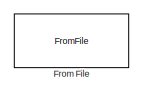
[diagram: root canvas - part 1/6, top left region]
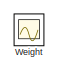
[diagram: root canvas - part 2/6, middle right region]
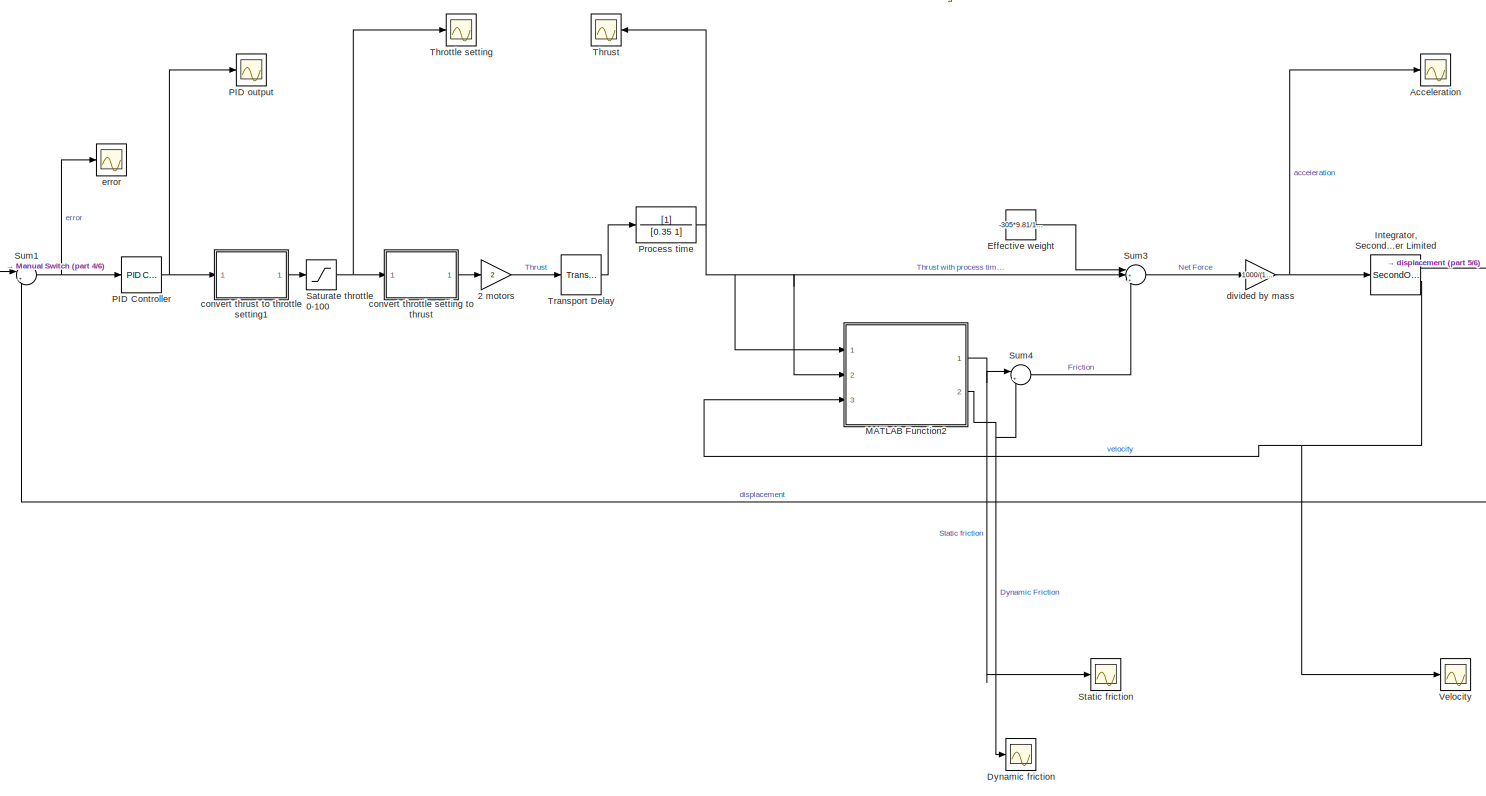
[diagram: root canvas - part 3/6, central region]
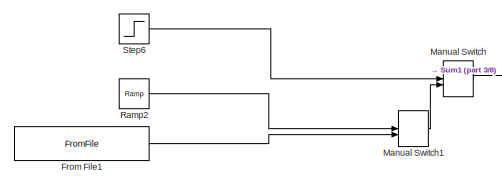
[diagram: root canvas - part 4/6, middle left region]
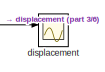
[diagram: root canvas - part 5/6, middle right region]
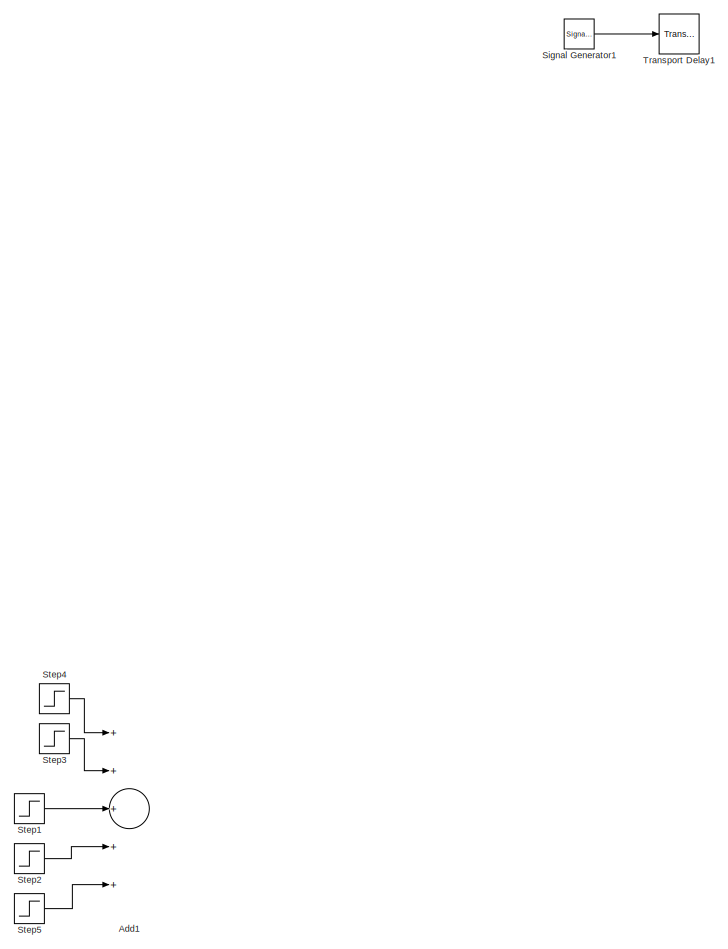
[diagram: root canvas - part 6/6, bottom left region]
MODEL slx_72b309ba7e25
KIND model
CONFIG AbsTol = auto
CONFIG EnableMultiTasking = off
CONFIG FixedStep = auto
CONFIG MaxStep = auto
CONFIG MinStep = auto
CONFIG RelTol = 1e-6
CONFIG SampleTimeConstraint = Unconstrained
CONFIG Solver = VariableStepAuto
CONFIG SolverName = VariableStepAuto
CONFIG StartTime = 0.0
CONFIG StopTime = 100
BLOCK [Gain] 2 motors
  Gain = 2
  OutDataTypeStr = Inherit: Inherit via internal rule
  ParamDataTypeStr = Inherit: Inherit via internal rule
  SaturateOnIntegerOverflow = off
BLOCK [Scope] Acceleration
  Floating = off
  NumInputPorts = 1
  Ports = [1]
  ScopeSpecificationString = Simulink.scopes.TimeScopeBlockCfg('CurrentConfiguration', extmgr.ConfigurationSet(extmgr.Configuration('Core','General UI',true),extmgr.Configuration('Core','Source UI',true),extmgr.Configuration('Sources','WiredSimulink',true,'DataLoggingVariableName','ScopeData6'),extmgr.Configuration('Visuals','Time Domain',true,'SerializedDisplays',{struct('MinYLimReal','-2.75869','MaxYLimReal','0.64408','YLab...<+1452ch>
BLOCK [Sum] Add1
  InputSameDT = off
  Inputs = +++++
  OutDataTypeStr = Inherit: Inherit via internal rule
  Ports = [5, 1]
  SaturateOnIntegerOverflow = off
BLOCK [Scope] Dynamic friction
  Floating = off
  NumInputPorts = 1
  Ports = [1]
  ScopeSpecificationString = Simulink.scopes.TimeScopeBlockCfg('CurrentConfiguration', extmgr.ConfigurationSet(extmgr.Configuration('Core','General UI',true),extmgr.Configuration('Core','Source UI',true),extmgr.Configuration('Sources','WiredSimulink',true,'DataLoggingVariableName','ScopeData5'),extmgr.Configuration('Visuals','Time Domain',true,'SerializedDisplays',{struct('MinYLimReal','-0.18448','MaxYLimReal','0.0205','YLabe...<+1454ch>
BLOCK [Constant] Effective weight
  Value = -305*9.81/1000
BLOCK [FromFile] From File
  FileName = missionProfile.mat
  SampleTime = 0
BLOCK [FromFile] From File1
  FileName = missionProfile.mat
  SampleTime = 0
BLOCK [SecondOrderIntegrator] Integrator, Second-Order Limited
  ICX = 0
  LimitX = on
  LowerLimitX = 0
  Ports = [1, 2]
  ReinitDXDTwhenXreachesSaturation = on
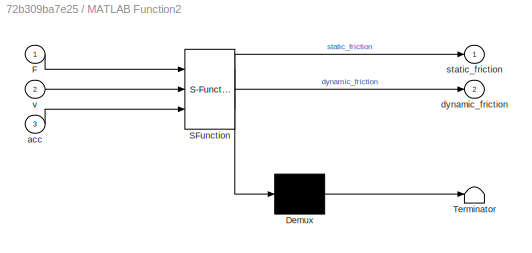
BLOCK [SubSystem] MATLAB Function2
  ErrorFcn = Stateflow.Translate.translate
  PermitHierarchicalResolution = ExplicitOnly
  Ports = [3, 2]
  RequestExecContextInheritance = off
  SFBlockType = MATLAB Function
  TreatAsAtomicUnit = on
BLOCK [Demux] MATLAB Function2/ Demux 
  Outputs = 1
  Ports = [1, 1]
BLOCK [S-Function] MATLAB Function2/ SFunction 
  EnableBusSupport = on
  FunctionName = sf_sfun
  PortCounts = [3 3]
  Ports = [3, 3]
  SFcnIsStateOwnerBlock = off
  SFunctionDeploymentMode = off
  Tag = Stateflow S-Function testmodel4 9
BLOCK [Terminator] MATLAB Function2/ Terminator 
BLOCK [Inport] MATLAB Function2/F
  IconDisplay = Port number
BLOCK [Inport] MATLAB Function2/acc
  IconDisplay = Port number
  Port = 3
BLOCK [Outport] MATLAB Function2/dynamic_friction
  IconDisplay = Port number
  Port = 2
BLOCK [Outport] MATLAB Function2/static_friction
  IconDisplay = Port number
BLOCK [Inport] MATLAB Function2/v
  IconDisplay = Port number
  Port = 2
BLOCK [ManualSwitch] Manual Switch
BLOCK [ManualSwitch] Manual Switch1
BLOCK [Reference] PID Controller  REF=simulink/Continuous/PID Controller
  Ports = [1, 1]
  SourceBlock = simulink/Continuous/PID Controller
  SourceProductBaseCode = SL
  SourceProductName = Simulink
  SourceType = PID 1dof
BLOCK [Scope] PID output
  Floating = off
  NumInputPorts = 1
  Ports = [1]
  ScopeSpecificationString = Simulink.scopes.TimeScopeBlockCfg('CurrentConfiguration', extmgr.ConfigurationSet(extmgr.Configuration('Core','General UI',true),extmgr.Configuration('Core','Source UI',true),extmgr.Configuration('Sources','WiredSimulink',true,'DataLoggingVariableName','ScopeData8'),extmgr.Configuration('Visuals','Time Domain',true,'SerializedDisplays',{struct('MinYLimReal','-943.76656','MaxYLimReal','808.63626','...<+1487ch>
BLOCK [TransferFcn] Process time  
  Denominator = [0.35 1]
BLOCK [Reference] Ramp2  REF=simulink/Sources/Ramp
  Ports = [0, 1]
  SourceBlock = simulink/Sources/Ramp
  SourceProductBaseCode = SL
  SourceProductName = Simulink
  SourceType = Ramp
BLOCK [Saturate] Saturate throttle 0-100
  InputPortMap = u0
  LowerLimit = 0
  Ports = [1, 1]
  UpperLimit = 100
BLOCK [SignalGenerator] Signal Generator1
  Ports = [0, 1]
  Units = rad/sec
BLOCK [Scope] Static friction
  Floating = off
  NumInputPorts = 1
  Ports = [1]
  ScopeSpecificationString = Simulink.scopes.TimeScopeBlockCfg('CurrentConfiguration', extmgr.ConfigurationSet(extmgr.Configuration('Core','General UI',true),extmgr.Configuration('Core','Source UI',true),extmgr.Configuration('Sources','WiredSimulink',true,'DataLoggingVariableName','ScopeData4'),extmgr.Configuration('Visuals','Time Domain',true,'SerializedDisplays',{struct('MinYLimReal','-1.00000','MaxYLimReal','1.00000','YLab...<+1454ch>
BLOCK [Step] Step1
  After = -2
  SampleTime = 0
  Time = 7
BLOCK [Step] Step2
  After = 6
  SampleTime = 0
  Time = 9
BLOCK [Step] Step3
  After = -5
  SampleTime = 0
  Time = 5
BLOCK [Step] Step4
  After = 5
  SampleTime = 0
  Time = 2
BLOCK [Step] Step5
  After = 10
  SampleTime = 0
  Time = 15
BLOCK [Step] Step6
  SampleTime = 0
BLOCK [Sum] Sum1
  IconShape = round
  InputSameDT = off
  Inputs = |+-
  OutDataTypeStr = Inherit: Inherit via internal rule
  Ports = [2, 1]
  SaturateOnIntegerOverflow = off
BLOCK [Sum] Sum3
  IconShape = round
  InputSameDT = off
  Inputs = |+++
  OutDataTypeStr = Inherit: Inherit via internal rule
  Ports = [3, 1]
  SaturateOnIntegerOverflow = off
BLOCK [Sum] Sum4
  IconShape = round
  InputSameDT = off
  Inputs = |++
  OutDataTypeStr = Inherit: Inherit via internal rule
  Ports = [2, 1]
  SaturateOnIntegerOverflow = off
BLOCK [Scope] Throttle setting
  Floating = off
  NumInputPorts = 1
  Ports = [1]
  ScopeSpecificationString = Simulink.scopes.TimeScopeBlockCfg('CurrentConfiguration', extmgr.ConfigurationSet(extmgr.Configuration('Core','General UI',true),extmgr.Configuration('Core','Source UI',true),extmgr.Configuration('Sources','WiredSimulink',true,'DataLoggingVariableName','ScopeData1'),extmgr.Configuration('Visuals','Time Domain',true,'SerializedDisplays',{struct('MinYLimReal','-12.5','MaxYLimReal','112.5','YLabelRea...<+1435ch>
BLOCK [Scope] Thrust
  Floating = off
  NumInputPorts = 1
  Ports = [1]
  ScopeSpecificationString = Simulink.scopes.TimeScopeBlockCfg('CurrentConfiguration', extmgr.ConfigurationSet(extmgr.Configuration('Core','General UI',true),extmgr.Configuration('Core','Source UI',true),extmgr.Configuration('Sources','WiredSimulink',true,'DataLoggingVariableName','ScopeData2'),extmgr.Configuration('Visuals','Time Domain',true,'SerializedDisplays',{struct('MinYLimReal','-0.43949','MaxYLimReal','3.95545','YLab...<+1465ch>
BLOCK [TransportDelay] Transport Delay
  DelayTime = 0.3
  Ports = [1, 1]
BLOCK [TransportDelay] Transport Delay1
  DelayTime = 30
  Ports = [1, 1]
BLOCK [Scope] Velocity
  Floating = off
  NumInputPorts = 1
  Ports = [1]
  ScopeSpecificationString = Simulink.scopes.TimeScopeBlockCfg('CurrentConfiguration', extmgr.ConfigurationSet(extmgr.Configuration('Core','General UI',true),extmgr.Configuration('Core','Source UI',true),extmgr.Configuration('Sources','WiredSimulink',true,'DataLoggingVariableName','ScopeData7'),extmgr.Configuration('Visuals','Time Domain',true,'SerializedDisplays',{struct('MinYLimReal','-0.11331','MaxYLimReal','0.49652','YLab...<+1475ch>
BLOCK [Scope] Weight
  Floating = off
  NumInputPorts = 1
  Ports = [1]
  ScopeSpecificationString = Simulink.scopes.TimeScopeBlockCfg('CurrentConfiguration', extmgr.ConfigurationSet(extmgr.Configuration('Core','General UI',true),extmgr.Configuration('Core','Source UI',true),extmgr.Configuration('Sources','WiredSimulink',true,'DataLoggingVariableName','ScopeData3'),extmgr.Configuration('Visuals','Time Domain',true,'SerializedDisplays',{struct('MinYLimReal','-1.00000','MaxYLimReal','1.00000','YLab...<+1475ch>
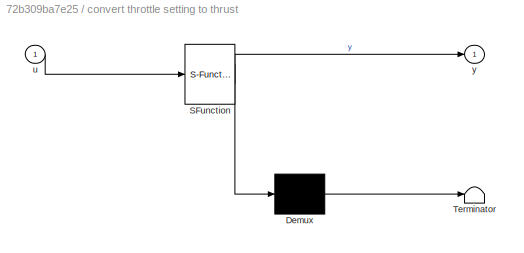
BLOCK [SubSystem] convert throttle setting to thrust
  ErrorFcn = Stateflow.Translate.translate
  PermitHierarchicalResolution = ExplicitOnly
  Ports = [1, 1]
  RequestExecContextInheritance = off
  SFBlockType = MATLAB Function
  TreatAsAtomicUnit = on
BLOCK [Demux] convert throttle setting to thrust/ Demux 
  Outputs = 1
  Ports = [1, 1]
BLOCK [S-Function] convert throttle setting to thrust/ SFunction 
  EnableBusSupport = on
  FunctionName = sf_sfun
  PortCounts = [1 2]
  Ports = [1, 2]
  SFcnIsStateOwnerBlock = off
  SFunctionDeploymentMode = off
  Tag = Stateflow S-Function testmodel4 1
BLOCK [Terminator] convert throttle setting to thrust/ Terminator 
BLOCK [Inport] convert throttle setting to thrust/u
  IconDisplay = Port number
BLOCK [Outport] convert throttle setting to thrust/y
  IconDisplay = Port number
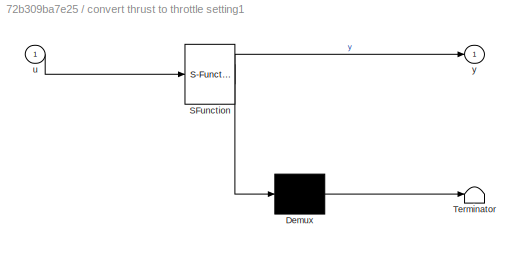
BLOCK [SubSystem] convert thrust to throttle setting1
  ErrorFcn = Stateflow.Translate.translate
  PermitHierarchicalResolution = ExplicitOnly
  Ports = [1, 1]
  RequestExecContextInheritance = off
  SFBlockType = MATLAB Function
  TreatAsAtomicUnit = on
BLOCK [Demux] convert thrust to throttle setting1/ Demux 
  Outputs = 1
  Ports = [1, 1]
BLOCK [S-Function] convert thrust to throttle setting1/ SFunction 
  EnableBusSupport = on
  FunctionName = sf_sfun
  PortCounts = [1 2]
  Ports = [1, 2]
  SFcnIsStateOwnerBlock = off
  SFunctionDeploymentMode = off
  Tag = Stateflow S-Function testmodel4 2
BLOCK [Terminator] convert thrust to throttle setting1/ Terminator 
BLOCK [Inport] convert thrust to throttle setting1/u
  IconDisplay = Port number
BLOCK [Outport] convert thrust to throttle setting1/y
  IconDisplay = Port number
BLOCK [Scope] displacement
  Floating = off
  NumInputPorts = 2
  Ports = [2]
  ScopeSpecificationString = Simulink.scopes.TimeScopeBlockCfg('CurrentConfiguration', extmgr.ConfigurationSet(extmgr.Configuration('Core','General UI',true),extmgr.Configuration('Core','Source UI',true),extmgr.Configuration('Sources','WiredSimulink',true,'DataLoggingVariableName','ScopeData5'),extmgr.Configuration('Visuals','Time Domain',true,'SerializedDisplays',{struct('MinYLimReal','-0.13685','MaxYLimReal','1.23161','YLab...<+1450ch>
BLOCK [Gain] divided by mass
  Gain = 1000/(1305)
  OutDataTypeStr = Inherit: Inherit via internal rule
  ParamDataTypeStr = Inherit: Inherit via internal rule
  SaturateOnIntegerOverflow = off
BLOCK [Scope] error
  Floating = off
  NumInputPorts = 1
  Ports = [1]
  ScopeSpecificationString = Simulink.scopes.TimeScopeBlockCfg('CurrentConfiguration', extmgr.ConfigurationSet(extmgr.Configuration('Core','General UI',true),extmgr.Configuration('Core','Source UI',true),extmgr.Configuration('Sources','WiredSimulink',true,'DataLoggingVariableName','ScopeData1'),extmgr.Configuration('Visuals','Time Domain',true,'SerializedDisplays',{struct('MinYLimReal','-0.23161','MaxYLimReal','1.13685','YLab...<+1390ch>
LINE 2 motors:1 -> Transport Delay:1
LINE Effective weight:1 -> Sum3:1
LINE From File1:1 -> Manual Switch1:2
NET Integrator, Second-Order Limited:1 -> Sum1:2, displacement:1
NET Integrator, Second-Order Limited:2 -> MATLAB Function2:3, Velocity:1
NET MATLAB Function2:1 -> Static friction:1, Sum4:1
NET MATLAB Function2:2 -> Dynamic friction:1, Sum4:2
LINE Manual Switch1:1 -> Manual Switch:2
LINE Manual Switch:1 -> Sum1:1
NET PID Controller:1 -> PID output:1, convert thrust to throttle setting1:1
NET Process time  :1 -> MATLAB Function2:1, MATLAB Function2:2, Sum3:2, Thrust:1
LINE Ramp2:1 -> Manual Switch1:1
NET Saturate throttle 0-100:1 -> Throttle setting:1, convert throttle setting to thrust:1
LINE Signal Generator1:1 -> Transport Delay1:1
LINE Step1:1 -> Add1:3
LINE Step2:1 -> Add1:4
LINE Step3:1 -> Add1:2
LINE Step4:1 -> Add1:1
LINE Step5:1 -> Add1:5
LINE Step6:1 -> Manual Switch:1
NET Sum1:1 -> PID Controller:1, error:1
LINE Sum3:1 -> divided by mass:1
LINE Sum4:1 -> Sum3:3
LINE Transport Delay:1 -> Process time  :1
LINE convert throttle setting to thrust:1 -> 2 motors:1
LINE convert thrust to throttle setting1:1 -> Saturate throttle 0-100:1
NET divided by mass:1 -> Acceleration:1, Integrator, Second-Order Limited:1
note: NET lines group one-source signal fan-out (src -> all destinations, sorted); 1:1 wires keep LINE
CHART convert throttle setting to thrust states=1 transitions=1
  STATE_LABEL 'eML_blk_kernel()'
  STATE_LABEL 'SCRIPT:\nfunction y = throttle2thrust(u)\nbreakpoints1=[0,0.0663455814708608,0.720926457059366,1.46901888630337,2.12359976189187,2.14485238772267,2.45089019968613,2.77150124079070,3.22236051734401,3.63536987932247,3.71329617403539,4.37956599383083,4.38346230856648,5.04371055104320,5.64586828291574,5.86406190811191,5.88410009818094,6.00432923859516,7.26673521294442,7.82780453487743,7.94256871436372,7...<+3608ch>'
CHART convert thrust to throttle setting1 states=1 transitions=1
  STATE_LABEL 'eML_blk_kernel()'
  STATE_LABEL 'SCRIPT:\nfunction y = thrust2throttle(u)\nbreakpoints1=[0,0.0663455814708608,0.720926457059366,1.46901888630337,2.12359976189187,2.14485238772267,2.45089019968613,2.77150124079070,3.22236051734401,3.63536987932247,3.71329617403539,4.37956599383083,4.38346230856648,5.04371055104320,5.64586828291574,5.86406190811191,5.88410009818094,6.00432923859516,7.26673521294442,7.82780453487743,7.94256871436372,7...<+3608ch>'
CHART MATLAB Function2 states=1 transitions=1
  STATE_LABEL 'eML_blk_kernel()'
  STATE_LABEL 'SCRIPT:\nfunction [static_friction,dynamic_friction]=stickslip(F,v,acc)\n\n%F=T-mg\n%v=velocity\n%acc=acceleration\n\ng=9.81;\n%% mass inputs\nm_carriage=350/1000; %in kg, given by errikos\nm_motorprop=45/1000; %in kg, per motor prop\nm_cw=150/1000; %estimated, errikos said 100 to 200g\nm_arm=65/1000; \nm_wires=m_cw+150/1000; \nm1=m_carriage+m_cw;\nm2=m_arm+2*m_motorprop+m_wires+m_carriage;\n\n%% moment arm length...<+1030ch>'
